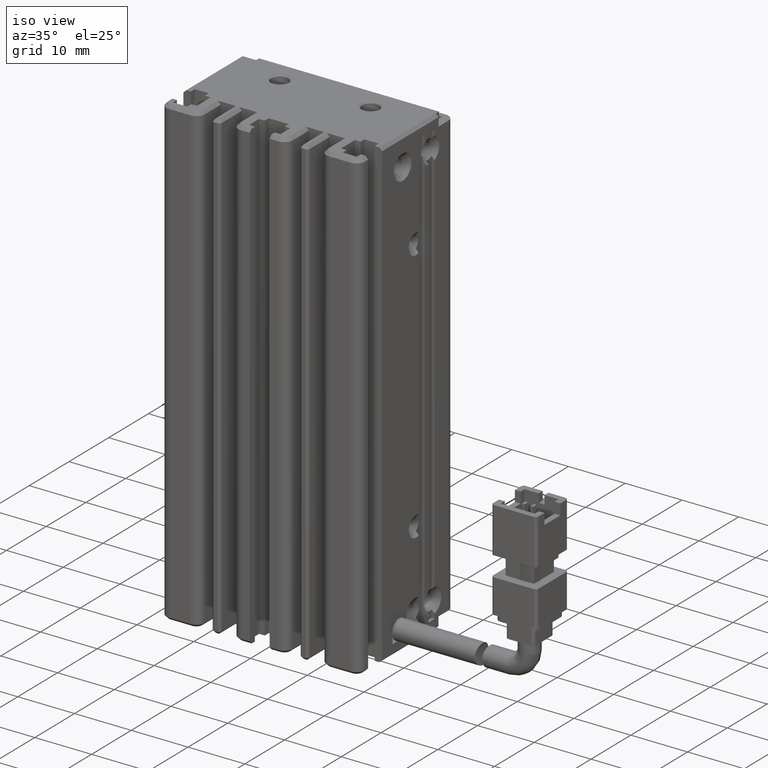
[diagram: clean part render]
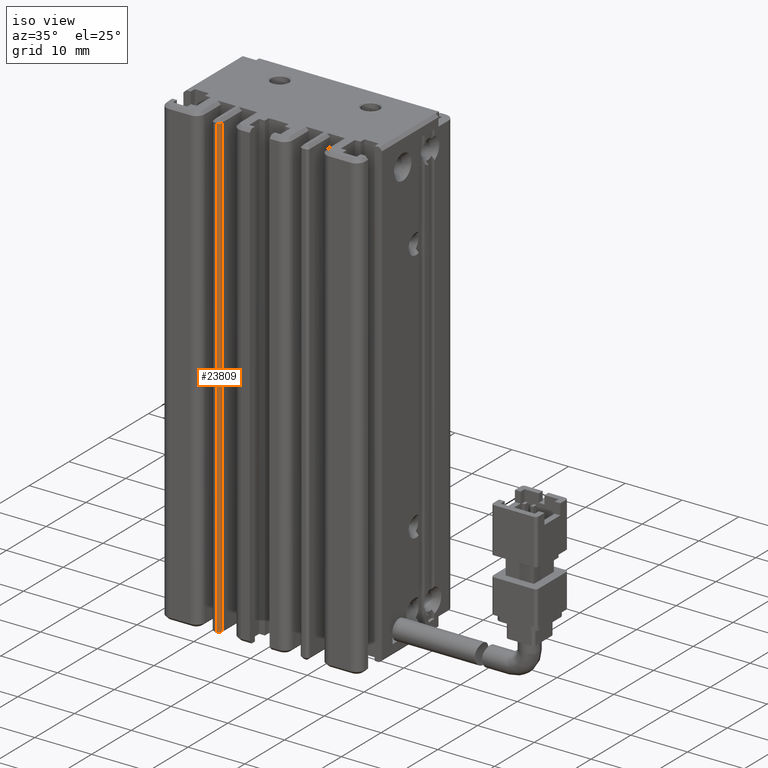
[diagram: same view with one face highlighted and labeled with its STEP entity id]
A machine part, iso view. The second image highlights one B-rep face of the part: STEP entity #23809.
In plain terms, the highlighted cylindrical surface (edge-blend (fillet) strip) has radius 0.5 mm, axis along (0, 0, 1).
Its self-contained STEP definition (entity closure, byte-faithful):
#171 = EDGE_LOOP ( 'NONE', ( #8562, #15039, #15801, #8715 ) ) ;
#433 = AXIS2_PLACEMENT_3D ( 'NONE', #22718, #34279, #8392 ) ;
#877 = EDGE_CURVE ( 'NONE', #7481, #24796, #14272, .T. ) ;
#1093 = CARTESIAN_POINT ( 'NONE',  ( 33.92537974684498900, 11.49073232304837300, -74.50000000001205100 ) ) ;
#1153 = CARTESIAN_POINT ( 'NONE',  ( 33.42537974683543200, 10.99073232304962400, -155.5000000000021900 ) ) ;
#1225 = EDGE_CURVE ( 'NONE', #1892, #24796, #17356, .T. ) ;
#1892 = VERTEX_POINT ( 'NONE', #22932 ) ;
#3433 = DIRECTION ( 'NONE',  ( 0.0000000000000000000, 0.0000000000000000000, 1.000000000000000000 ) ) ;
#4275 = CIRCLE ( 'NONE', #14837, 0.4999999999949905600 ) ;
#4471 = CARTESIAN_POINT ( 'NONE',  ( 33.42537974683543200, 11.49073232304837200, -74.50000000004820300 ) ) ;
#5427 = DIRECTION ( 'NONE',  ( 0.0000000000000000000, -0.0000000000000000000, -1.000000000000000000 ) ) ;
#7294 = CARTESIAN_POINT ( 'NONE',  ( 33.42537974683543200, 10.99073232303882000, -74.50000000001205100 ) ) ;
#7365 = CARTESIAN_POINT ( 'NONE',  ( 33.42537974683543200, 10.99073232304837000, -74.00000000000001400 ) ) ;
#7481 = VERTEX_POINT ( 'NONE', #7294 ) ;
#8392 = DIRECTION ( 'NONE',  ( 1.000000000000000000, 0.0000000000000000000, 0.0000000000000000000 ) ) ;
#8562 = ORIENTED_EDGE ( 'NONE', *, *, #12262, .T. ) ;
#8695 = EDGE_CURVE ( 'NONE', #1892, #18558, #4275, .T. ) ;
#8715 = ORIENTED_EDGE ( 'NONE', *, *, #877, .F. ) ;
#8949 = CARTESIAN_POINT ( 'NONE',  ( 33.92537974683543200, 11.49073232304837200, -74.00000000000001400 ) ) ;
#11483 = LINE ( 'NONE', #7365, #20155 ) ;
#11736 = DIRECTION ( 'NONE',  ( 1.000000000000000000, 0.0000000000000000000, 0.0000000000000000000 ) ) ;
#12262 = EDGE_CURVE ( 'NONE', #7481, #18558, #11483, .T. ) ;
#13316 = VECTOR ( 'NONE', #3433, 1000.000000000000000 ) ;
#14272 = CIRCLE ( 'NONE', #36699, 0.5000000000382059900 ) ;
#14837 = AXIS2_PLACEMENT_3D ( 'NONE', #22973, #5427, #11736 ) ;
#15039 = ORIENTED_EDGE ( 'NONE', *, *, #8695, .F. ) ;
#15801 = ORIENTED_EDGE ( 'NONE', *, *, #1225, .T. ) ;
#15945 = DIRECTION ( 'NONE',  ( -0.0000000000000000000, -0.0000000000000000000, -1.000000000000000000 ) ) ;
#16980 = FACE_OUTER_BOUND ( 'NONE', #171, .T. ) ;
#17356 = LINE ( 'NONE', #8949, #13316 ) ;
#18558 = VERTEX_POINT ( 'NONE', #1153 ) ;
#20155 = VECTOR ( 'NONE', #15945, 1000.000000000000000 ) ;
#22242 = DIRECTION ( 'NONE',  ( -0.0000000000000000000, 0.0000000000000000000, 1.000000000000000000 ) ) ;
#22718 = CARTESIAN_POINT ( 'NONE',  ( 33.42537974683543200, 11.49073232304837200, -74.00000000000001400 ) ) ;
#22932 = CARTESIAN_POINT ( 'NONE',  ( 33.92537974683418200, 11.49073232304836300, -155.5000000000021900 ) ) ;
#22973 = CARTESIAN_POINT ( 'NONE',  ( 33.42537974683543200, 11.49073232304837200, -155.5000000000086400 ) ) ;
#23809 = ADVANCED_FACE ( 'NONE', ( #16980 ), #30287, .T. ) ;
#24796 = VERTEX_POINT ( 'NONE', #1093 ) ;
#27748 = DIRECTION ( 'NONE',  ( -1.000000000000000000, 3.469446951688506800E-015, 0.0000000000000000000 ) ) ;
#30287 = CYLINDRICAL_SURFACE ( 'NONE', #433, 0.5000000000000004400 ) ;
#34279 = DIRECTION ( 'NONE',  ( 0.0000000000000000000, 0.0000000000000000000, 1.000000000000000000 ) ) ;
#36699 = AXIS2_PLACEMENT_3D ( 'NONE', #4471, #22242, #27748 ) ;